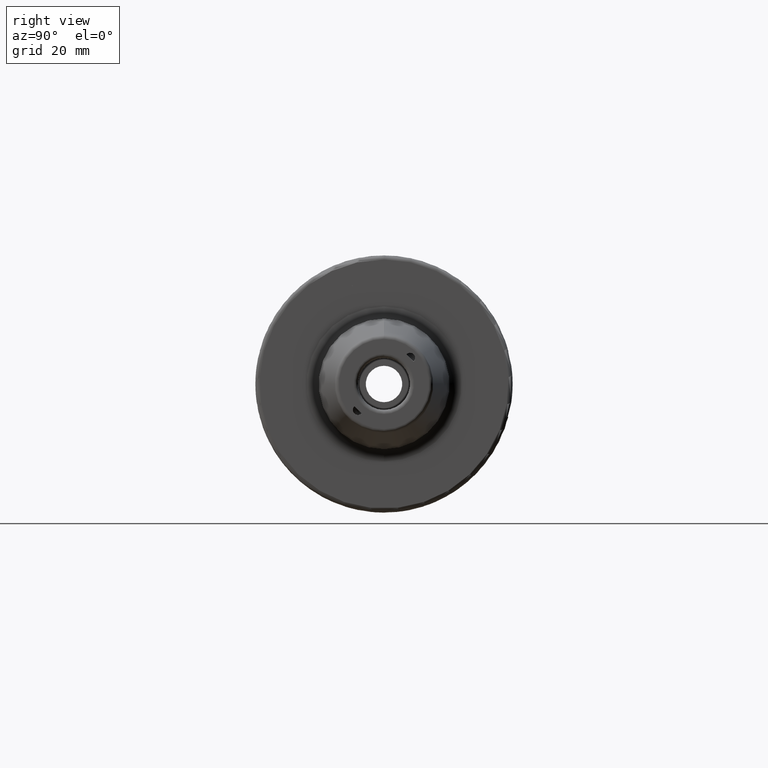
[diagram: clean part render]
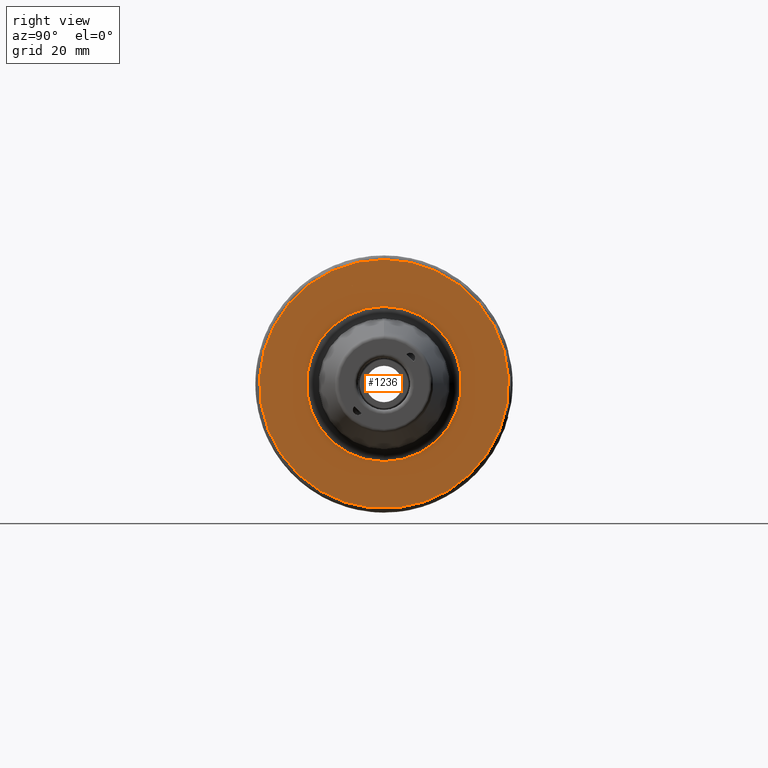
[diagram: same view with one face highlighted and labeled with its STEP entity id]
A machine part, right view. The second image highlights one B-rep face of the part: STEP entity #1236.
In plain terms, the highlighted planar face has unit normal (1, 0, 0).
Its self-contained STEP definition (entity closure, byte-faithful):
#45=FACE_BOUND('',#228,.T.);
#148=FACE_OUTER_BOUND('',#227,.T.);
#227=EDGE_LOOP('',(#883));
#228=EDGE_LOOP('',(#884));
#324=CIRCLE('',#1355,19.);
#325=CIRCLE('',#1358,30.5);
#532=VERTEX_POINT('',#1965);
#533=VERTEX_POINT('',#1971);
#665=EDGE_CURVE('',#532,#532,#324,.T.);
#667=EDGE_CURVE('',#533,#533,#325,.T.);
#883=ORIENTED_EDGE('',*,*,#667,.T.);
#884=ORIENTED_EDGE('',*,*,#665,.F.);
#1202=PLANE('',#1357);
#1236=ADVANCED_FACE('',(#148,#45),#1202,.T.);
#1355=AXIS2_PLACEMENT_3D('',#1967,#1571,#1572);
#1357=AXIS2_PLACEMENT_3D('',#1970,#1576,#1577);
#1358=AXIS2_PLACEMENT_3D('',#1972,#1578,#1579);
#1571=DIRECTION('center_axis',(1.,0.,0.));
#1572=DIRECTION('ref_axis',(0.,-1.22464679914735E-16,1.));
#1576=DIRECTION('center_axis',(1.,0.,0.));
#1577=DIRECTION('ref_axis',(0.,0.,-1.));
#1578=DIRECTION('center_axis',(1.,0.,0.));
#1579=DIRECTION('ref_axis',(0.,0.,-1.));
#1965=CARTESIAN_POINT('',(27.,4.65365783675994E-15,-19.));
#1967=CARTESIAN_POINT('Origin',(27.,0.,0.));
#1970=CARTESIAN_POINT('Origin',(27.,0.,0.));
#1971=CARTESIAN_POINT('',(27.,-3.73517273739943E-15,30.5));
#1972=CARTESIAN_POINT('Origin',(27.,0.,0.));